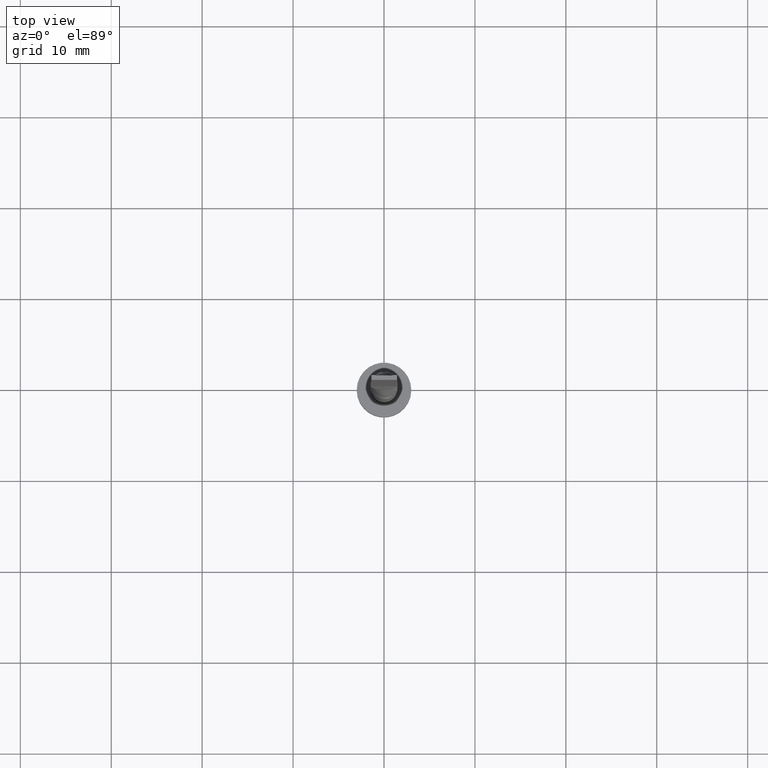
[diagram: clean part render]
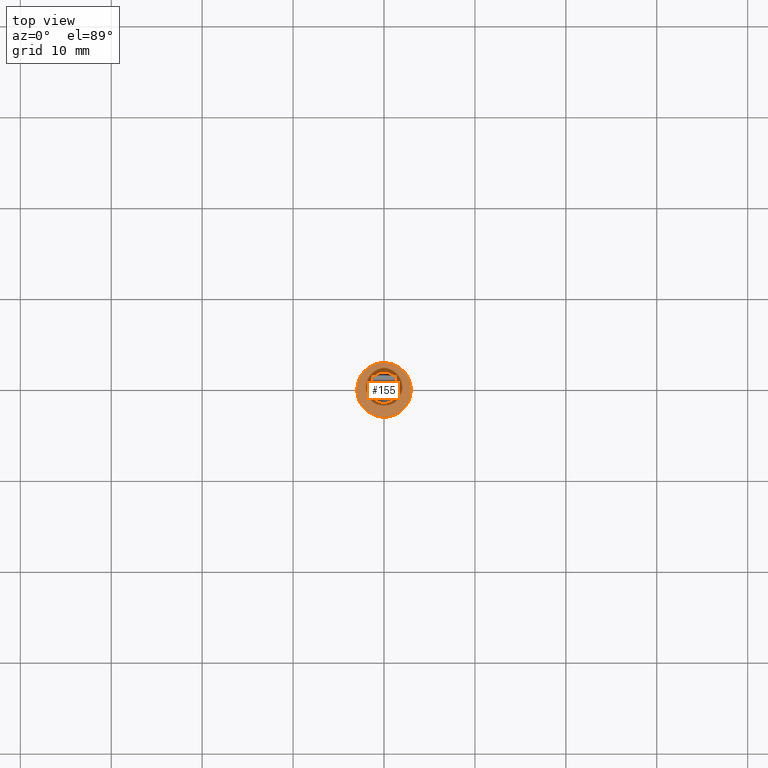
[diagram: same view with one face highlighted and labeled with its STEP entity id]
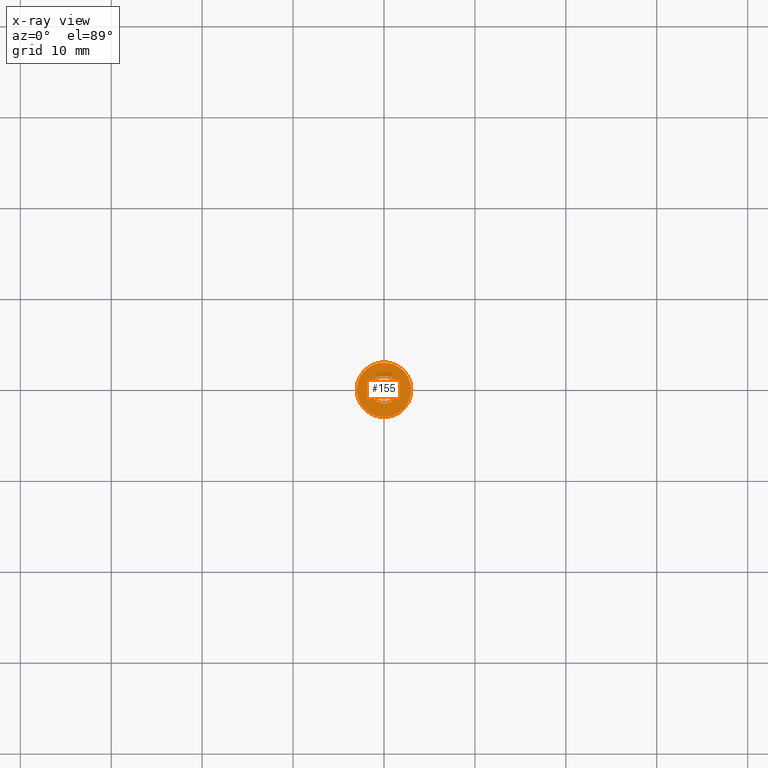
[diagram: x-ray of the same camera — body ghosted, the highlighted face saturated]
A machine part, top view. The second image highlights one B-rep face of the part: STEP entity #155.
The next image is the same camera in x-ray: the body ghosted, the highlighted face saturated — about 8% of this face is hidden behind the body in this view.
In plain terms, the highlighted planar face has unit normal (0, 0, 1).
Its self-contained STEP definition (entity closure, byte-faithful):
#1 = EDGE_LOOP ( 'NONE', ( #556, #74 ) ) ;
#31 = DIRECTION ( 'NONE',  ( 0.000000000000000000, 0.000000000000000000, 1.000000000000000000 ) ) ;
#39 = CARTESIAN_POINT ( 'NONE',  ( 0.000000000000000000, 0.000000000000000000, 3.000000000000000000 ) ) ;
#46 = EDGE_CURVE ( 'NONE', #159, #465, #453, .T. ) ;
#55 = VERTEX_POINT ( 'NONE', #212 ) ;
#62 = VERTEX_POINT ( 'NONE', #329 ) ;
#64 = ORIENTED_EDGE ( 'NONE', *, *, #216, .F. ) ;
#67 = CARTESIAN_POINT ( 'NONE',  ( 0.000000000000000000, 0.000000000000000000, 3.000000000000000000 ) ) ;
#74 = ORIENTED_EDGE ( 'NONE', *, *, #417, .T. ) ;
#155 = ADVANCED_FACE ( 'NONE', ( #207, #427 ), #215, .T. ) ;
#159 = VERTEX_POINT ( 'NONE', #176 ) ;
#176 = CARTESIAN_POINT ( 'NONE',  ( -1.500000000000000222, 0.000000000000000000, 3.000000000000000000 ) ) ;
#182 = DIRECTION ( 'NONE',  ( 0.000000000000000000, 0.000000000000000000, 1.000000000000000000 ) ) ;
#187 = DIRECTION ( 'NONE',  ( 1.000000000000000000, 0.000000000000000000, 0.000000000000000000 ) ) ;
#194 = AXIS2_PLACEMENT_3D ( 'NONE', #474, #31, #309 ) ;
#207 = FACE_BOUND ( 'NONE', #337, .T. ) ;
#209 = AXIS2_PLACEMENT_3D ( 'NONE', #386, #305, #573 ) ;
#212 = CARTESIAN_POINT ( 'NONE',  ( -3.000000000000000444, 0.000000000000000000, 3.000000000000000000 ) ) ;
#215 = PLANE ( 'NONE',  #209 ) ;
#216 = EDGE_CURVE ( 'NONE', #465, #159, #333, .T. ) ;
#218 = DIRECTION ( 'NONE',  ( 0.000000000000000000, 0.000000000000000000, 1.000000000000000000 ) ) ;
#252 = DIRECTION ( 'NONE',  ( 0.000000000000000000, 0.000000000000000000, 1.000000000000000000 ) ) ;
#256 = CARTESIAN_POINT ( 'NONE',  ( 0.000000000000000000, 0.000000000000000000, 3.000000000000000000 ) ) ;
#261 = AXIS2_PLACEMENT_3D ( 'NONE', #256, #218, #558 ) ;
#305 = DIRECTION ( 'NONE',  ( 0.000000000000000000, 0.000000000000000000, 1.000000000000000000 ) ) ;
#308 = CIRCLE ( 'NONE', #261, 3.000000000000000444 ) ;
#309 = DIRECTION ( 'NONE',  ( 1.000000000000000000, 0.000000000000000000, 0.000000000000000000 ) ) ;
#329 = CARTESIAN_POINT ( 'NONE',  ( 3.000000000000000444, 3.673940397442060361E-16, 3.000000000000000000 ) ) ;
#333 = CIRCLE ( 'NONE', #194, 1.500000000000000222 ) ;
#337 = EDGE_LOOP ( 'NONE', ( #378, #64 ) ) ;
#361 = DIRECTION ( 'NONE',  ( 1.000000000000000000, 0.000000000000000000, 0.000000000000000000 ) ) ;
#378 = ORIENTED_EDGE ( 'NONE', *, *, #46, .F. ) ;
#386 = CARTESIAN_POINT ( 'NONE',  ( 0.000000000000000000, 0.000000000000000000, 3.000000000000000000 ) ) ;
#417 = EDGE_CURVE ( 'NONE', #62, #55, #535, .T. ) ;
#427 = FACE_OUTER_BOUND ( 'NONE', #1, .T. ) ;
#440 = AXIS2_PLACEMENT_3D ( 'NONE', #67, #252, #361 ) ;
#453 = CIRCLE ( 'NONE', #440, 1.500000000000000222 ) ;
#465 = VERTEX_POINT ( 'NONE', #487 ) ;
#474 = CARTESIAN_POINT ( 'NONE',  ( 0.000000000000000000, 0.000000000000000000, 3.000000000000000000 ) ) ;
#487 = CARTESIAN_POINT ( 'NONE',  ( 1.500000000000000222, 1.836970198721030181E-16, 3.000000000000000000 ) ) ;
#535 = CIRCLE ( 'NONE', #574, 3.000000000000000444 ) ;
#549 = EDGE_CURVE ( 'NONE', #55, #62, #308, .T. ) ;
#556 = ORIENTED_EDGE ( 'NONE', *, *, #549, .T. ) ;
#558 = DIRECTION ( 'NONE',  ( 1.000000000000000000, 0.000000000000000000, 0.000000000000000000 ) ) ;
#573 = DIRECTION ( 'NONE',  ( 1.000000000000000000, 0.000000000000000000, -0.000000000000000000 ) ) ;
#574 = AXIS2_PLACEMENT_3D ( 'NONE', #39, #182, #187 ) ;